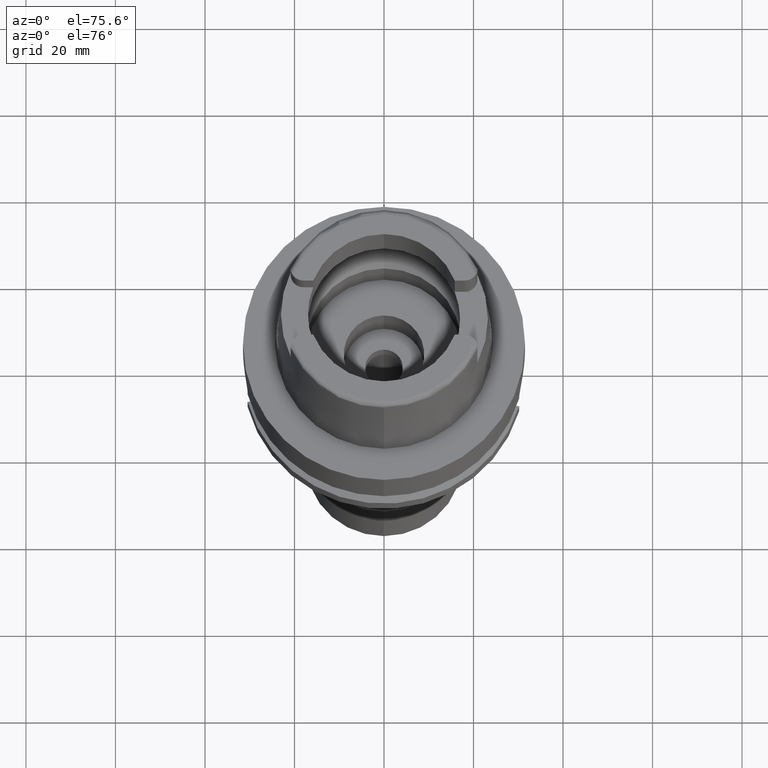
[diagram: clean part render]
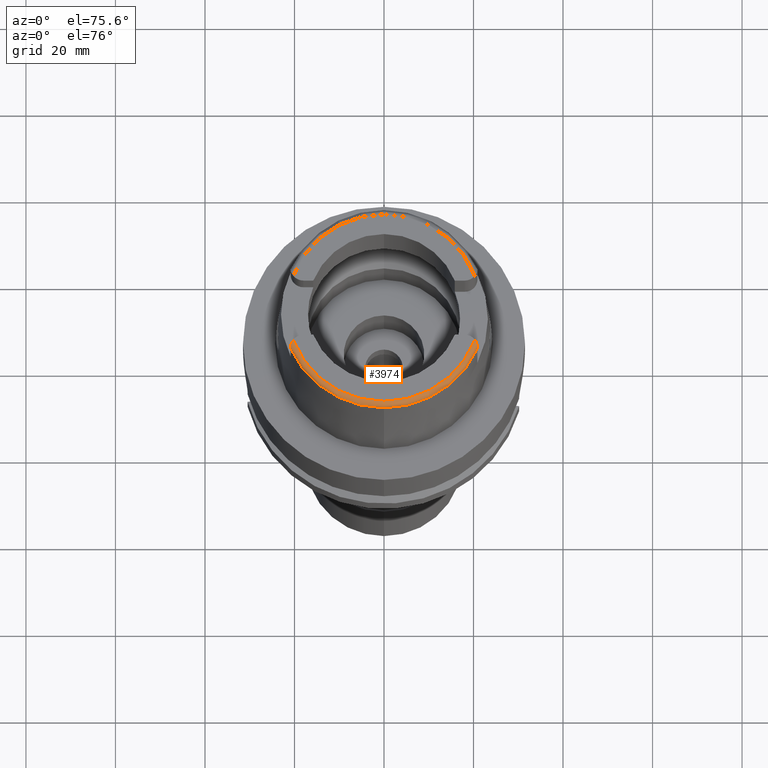
[diagram: same view with one face highlighted and labeled with its STEP entity id]
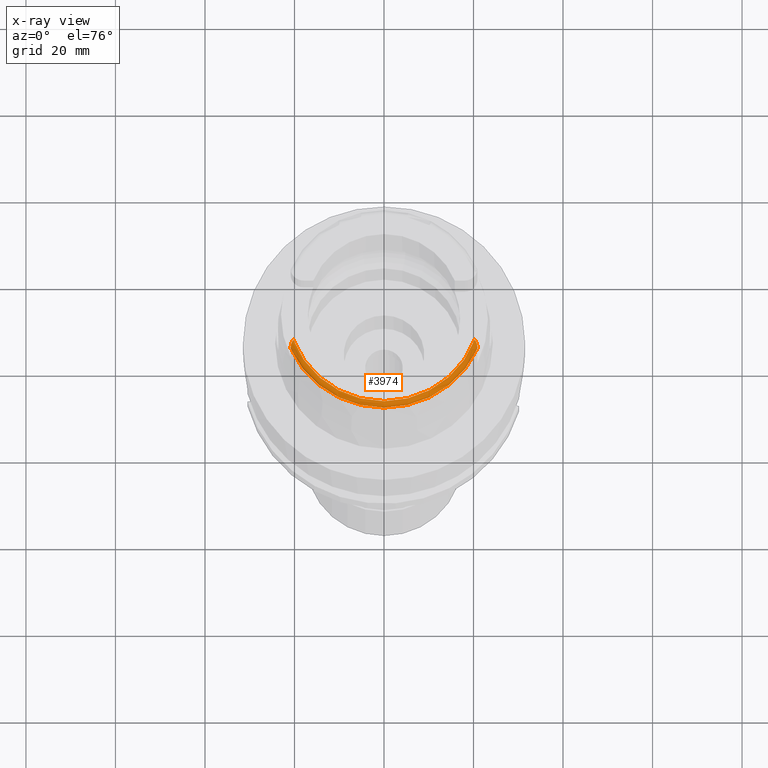
[diagram: x-ray of the same camera — body ghosted, the highlighted face saturated]
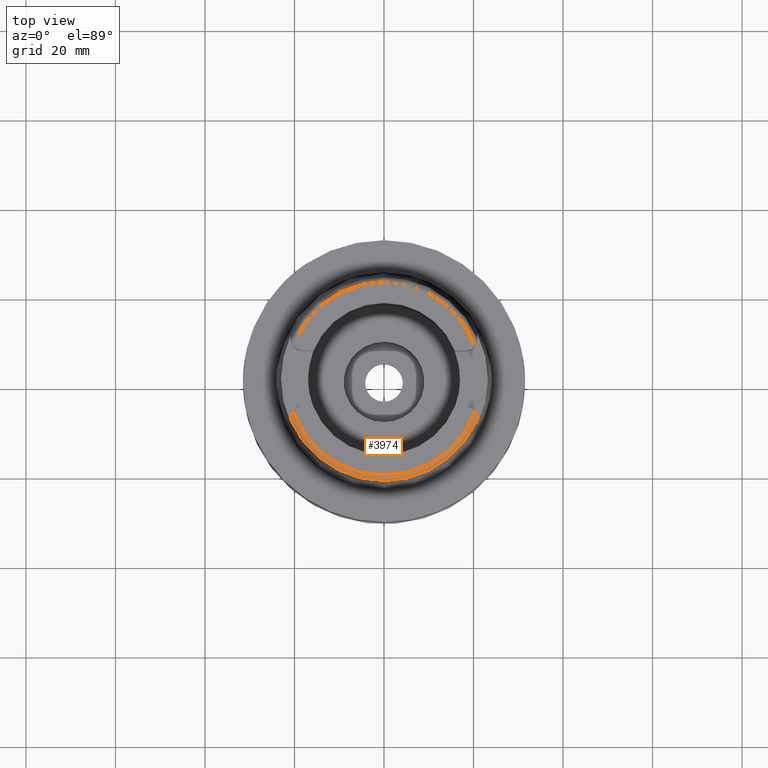
[diagram: same view with one face highlighted and labeled with its STEP entity id]
A machine part, auxiliary view. The second image highlights one B-rep face of the part: STEP entity #3974.
The next image is the same camera in x-ray: the body ghosted, the highlighted face saturated — about 0% of this face is hidden behind the body in this view.
A second angle (top view) of the same face is appended — the face is thin or edge-on in the first view.
In plain terms, the highlighted toroidal blend (fillet) surface has major radius 21.5735 mm and minor (blend) radius 1.2 mm.
Its self-contained STEP definition (entity closure, byte-faithful):
#29 = CARTESIAN_POINT ( 'NONE',  ( -20.71248996716753155, -8.207689846206323026, 31.77228684002133363 ) ) ;
#197 = CARTESIAN_POINT ( 'NONE',  ( 20.87000000000000099, -9.070000000000000284, 31.00584217417999966 ) ) ;
#249 = EDGE_CURVE ( 'NONE', #5436, #1597, #5113, .T. ) ;
#305 = CARTESIAN_POINT ( 'NONE',  ( 20.60845534592744954, -7.888286895013477462, 31.89408520756957444 ) ) ;
#332 = CARTESIAN_POINT ( 'NONE',  ( 20.79896683364334820, -8.443282967950011653, 31.62237664038152474 ) ) ;
#364 = CARTESIAN_POINT ( 'NONE',  ( 20.79501618593454992, -8.426162019685438764, 31.63308067177113969 ) ) ;
#368 = VERTEX_POINT ( 'NONE', #4759 ) ;
#389 = CARTESIAN_POINT ( 'NONE',  ( -20.67803593668521245, -8.115464911612090049, 31.81550811677279356 ) ) ;
#440 = CARTESIAN_POINT ( 'NONE',  ( -20.73814440234330547, -8.286800805050020813, 31.73056878117396806 ) ) ;
#469 = CARTESIAN_POINT ( 'NONE',  ( -20.41316226917745880, -7.575682510302611306, 32.00000000000000000 ) ) ;
#504 = AXIS2_PLACEMENT_3D ( 'NONE', #2883, #5382, #1945 ) ;
#586 = CARTESIAN_POINT ( 'NONE',  ( 20.87000000000000099, -9.070000000000000284, 31.00584217417999966 ) ) ;
#725 = CARTESIAN_POINT ( 'NONE',  ( 20.85738348944918386, -8.799512399905001558, 31.35760982423154530 ) ) ;
#757 = CARTESIAN_POINT ( 'NONE',  ( 20.57793604956050970, -7.824345773714566299, 31.91616956854441511 ) ) ;
#782 = CARTESIAN_POINT ( 'NONE',  ( 20.82063014000235768, -8.540935583675148379, 31.56013503704591727 ) ) ;
#808 = CARTESIAN_POINT ( 'NONE',  ( 20.76446022763101240, -8.305904312876950968, 31.70453202698061901 ) ) ;
#859 = CARTESIAN_POINT ( 'NONE',  ( -20.80934349955186136, -8.560511319458479207, 31.56195008459679485 ) ) ;
#886 = CARTESIAN_POINT ( 'NONE',  ( -20.86545981086780444, -8.986843022178069518, 31.16045485328212905 ) ) ;
#913 = CARTESIAN_POINT ( 'NONE',  ( 20.87000070298999788, -9.089797832204999040, 30.95640205472999895 ) ) ;
#944 = CARTESIAN_POINT ( 'NONE',  ( -20.86638709980072548, -9.004823211844925623, 31.13387739490336514 ) ) ;
#985 = CARTESIAN_POINT ( 'NONE',  ( 0.0000000000000000000, -22.77198729362000051, 30.85992712280000205 ) ) ;
#1040 = TOROIDAL_SURFACE ( 'NONE', #504, 21.57348458609000019, 1.199999999999999956 ) ;
#1137 = CARTESIAN_POINT ( 'NONE',  ( 20.74360684277586842, -8.236822523031491983, 31.74138781336573345 ) ) ;
#1241 = CARTESIAN_POINT ( 'NONE',  ( -20.86787763309170174, -9.038199388778224375, 31.07847186281157903 ) ) ;
#1270 = ORIENTED_EDGE ( 'NONE', *, *, #1302, .F. ) ;
#1293 = CARTESIAN_POINT ( 'NONE',  ( -20.65156325028784678, -8.049689708880535477, 31.84417458915799060 ) ) ;
#1302 = EDGE_CURVE ( 'NONE', #2542, #4794, #3550, .T. ) ;
#1324 = CARTESIAN_POINT ( 'NONE',  ( -20.78424247757186905, -8.452062542851029647, 31.63347315170482332 ) ) ;
#1349 = CARTESIAN_POINT ( 'NONE',  ( -20.86965324358618190, -9.104832187881362060, 30.91396429897820752 ) ) ;
#1462 = CARTESIAN_POINT ( 'NONE',  ( 0.0000000000000000000, 0.0000000000000000000, 30.85992712280000205 ) ) ;
#1477 = EDGE_CURVE ( 'NONE', #1597, #368, #4585, .T. ) ;
#1575 = CARTESIAN_POINT ( 'NONE',  ( 20.80306467133978998, -8.461411097079832189, 31.61092678333328365 ) ) ;
#1597 = VERTEX_POINT ( 'NONE', #197 ) ;
#1598 = DIRECTION ( 'NONE',  ( 0.9401236264118068009, -0.3408336354621024911, 0.0000000000000000000 ) ) ;
#1606 = EDGE_CURVE ( 'NONE', #368, #2542, #2226, .T. ) ;
#1654 = CARTESIAN_POINT ( 'NONE',  ( 20.34605210860357261, -7.435807623308134495, 31.99999999999999289 ) ) ;
#1713 = CARTESIAN_POINT ( 'NONE',  ( 20.87000527243999670, -9.110771420352000050, 30.85992623711999983 ) ) ;
#1778 = EDGE_CURVE ( 'NONE', #5436, #1837, #2406, .T. ) ;
#1837 = VERTEX_POINT ( 'NONE', #3364 ) ;
#1882 = DIRECTION ( 'NONE',  ( 0.9164775804687985694, -0.4000860463675992573, 0.0000000000000000000 ) ) ;
#1888 = AXIS2_PLACEMENT_3D ( 'NONE', #2925, #2017, #1598 ) ;
#1945 = DIRECTION ( 'NONE',  ( -0.0006539142454762719193, -0.9999997861980568503, 0.0000000000000000000 ) ) ;
#2017 = DIRECTION ( 'NONE',  ( 0.0000000000000000000, 0.0000000000000000000, -1.000000000000000000 ) ) ;
#2020 = CARTESIAN_POINT ( 'NONE',  ( 20.59634625021481469, -7.862616038788778461, 31.90309923245726509 ) ) ;
#2051 = FACE_OUTER_BOUND ( 'NONE', #3901, .T. ) ;
#2130 = CARTESIAN_POINT ( 'NONE',  ( -20.75744703499674770, -8.352613603620536509, 31.69320859313263483 ) ) ;
#2140 = ORIENTED_EDGE ( 'NONE', *, *, #249, .F. ) ;
#2182 = CARTESIAN_POINT ( 'NONE',  ( -20.84159816788250197, -8.745042735179671567, 31.41946248049295320 ) ) ;
#2226 = CIRCLE ( 'NONE', #2664, 22.77198729362001117 ) ;
#2388 = CARTESIAN_POINT ( 'NONE',  ( 20.83283702531801751, -8.610711723061875489, 31.51110418801149393 ) ) ;
#2406 = CIRCLE ( 'NONE', #1888, 21.57348458609000375 ) ;
#2415 = CARTESIAN_POINT ( 'NONE',  ( 20.66196188635086273, -8.006086298045953953, 31.85061680225315683 ) ) ;
#2441 = B_SPLINE_CURVE_WITH_KNOTS ( 'NONE', 3,
 ( #2537, #1349, #4683, #2983, #1241, #944, #886, #3369, #3398, #4202, #2182, #2932, #5098, #2957, #4260, #859, #4231, #1324, #3870, #4627, #3813, #2130, #440, #29, #389, #3008, #1293, #4289, #4707, #469, #3842 ),
 .UNSPECIFIED., .F., .F.,
 ( 4, 2, 2, 2, 2, 2, 2, 2, 2, 1, 2, 2, 1, 1, 2, 2, 4 ),
 ( 0.0000000000000000000, 0.1250000000000131561, 0.1875000000000205114, 0.2500000000000278666, 0.3750000000000378586, 0.4375000000000416334, 0.4687500000000408007, 0.5000000000000398570, 0.5625000000000358602, 0.5937500000000338618, 0.6093750000000333067, 0.6250000000000326406, 0.6875000000000289768, 0.7187500000000250910, 0.7343750000000224265, 0.7500000000000197620, 1.000000000000000000 ),
 .UNSPECIFIED. ) ;
#2443 = CARTESIAN_POINT ( 'NONE',  ( 20.53329889420431442, -7.736716513713304266, 31.94351211070377161 ) ) ;
#2455 = ORIENTED_EDGE ( 'NONE', *, *, #4165, .F. ) ;
#2537 = CARTESIAN_POINT ( 'NONE',  ( -20.86974104062000279, -9.111384045608000193, 30.85992599284000093 ) ) ;
#2542 = VERTEX_POINT ( 'NONE', #985 ) ;
#2664 = AXIS2_PLACEMENT_3D ( 'NONE', #1462, #4034, #1882 ) ;
#2851 = CARTESIAN_POINT ( 'NONE',  ( 20.28174256341000259, -7.352969181062000814, 32.00000000000000000 ) ) ;
#2883 = CARTESIAN_POINT ( 'NONE',  ( 0.0000000000000000000, 0.0000000000000000000, 30.80000000000000071 ) ) ;
#2925 = CARTESIAN_POINT ( 'NONE',  ( 0.0000000000000000000, 0.0000000000000000000, 32.00000000000000000 ) ) ;
#2932 = CARTESIAN_POINT ( 'NONE',  ( -20.83366527646483135, -8.693635650188831221, 31.46170817453712587 ) ) ;
#2957 = CARTESIAN_POINT ( 'NONE',  ( -20.82450368662726703, -8.639777641999161872, 31.50374426771215752 ) ) ;
#2983 = CARTESIAN_POINT ( 'NONE',  ( -20.86838045110483719, -9.052657736505565822, 31.05088303226181523 ) ) ;
#3008 = CARTESIAN_POINT ( 'NONE',  ( -20.66228470550343843, -8.075990630972611939, 31.83286370854401071 ) ) ;
#3263 = CARTESIAN_POINT ( 'NONE',  ( 20.87000000000000099, -9.070000000000000284, 31.00584217417999966 ) ) ;
#3293 = CARTESIAN_POINT ( 'NONE',  ( 20.49231550850244332, -7.664516218014876259, 31.96154016047917423 ) ) ;
#3320 = CARTESIAN_POINT ( 'NONE',  ( 20.78538610200887504, -8.386150909112311425, 31.65756005008245211 ) ) ;
#3364 = CARTESIAN_POINT ( 'NONE',  ( -20.26871835884000106, -7.388795116668999796, 32.00000000000000000 ) ) ;
#3369 = CARTESIAN_POINT ( 'NONE',  ( -20.86119163457713199, -8.920618460102311076, 31.24796449388633590 ) ) ;
#3398 = CARTESIAN_POINT ( 'NONE',  ( -20.85682550469284990, -8.868165879198647517, 31.30563353150784422 ) ) ;
#3550 = CIRCLE ( 'NONE', #4258, 22.77198729362000051 ) ;
#3643 = CARTESIAN_POINT ( 'NONE',  ( -20.86974104062000279, -9.111384045608000193, 30.85992599284000093 ) ) ;
#3688 = DIRECTION ( 'NONE',  ( 0.0000000000000000000, -1.000000000000000000, 0.0000000000000000000 ) ) ;
#3759 = CARTESIAN_POINT ( 'NONE',  ( 20.61510992275799836, -7.902706324611401101, 31.88887094133553646 ) ) ;
#3813 = CARTESIAN_POINT ( 'NONE',  ( -20.76021323312616218, -8.362308916601532971, 31.68760326267726413 ) ) ;
#3842 = CARTESIAN_POINT ( 'NONE',  ( -20.26871835884000106, -7.388795116668999796, 32.00000000000000000 ) ) ;
#3870 = CARTESIAN_POINT ( 'NONE',  ( -20.77580428132003476, -8.418808570381811407, 31.65420181635008490 ) ) ;
#3901 = EDGE_LOOP ( 'NONE', ( #1270, #5421, #5042, #2140, #4532, #2455 ) ) ;
#3974 = ADVANCED_FACE ( 'NONE', ( #2051 ), #1040, .T. ) ;
#4034 = DIRECTION ( 'NONE',  ( 0.0000000000000000000, 0.0000000000000000000, -1.000000000000000000 ) ) ;
#4146 = CARTESIAN_POINT ( 'NONE',  ( 20.87000000000000455, -9.027219014152839449, 31.10377527405805154 ) ) ;
#4165 = EDGE_CURVE ( 'NONE', #4794, #1837, #2441, .T. ) ;
#4172 = CARTESIAN_POINT ( 'NONE',  ( 20.69785722828416752, -8.098506603616494104, 31.81055817533717800 ) ) ;
#4199 = CARTESIAN_POINT ( 'NONE',  ( 20.80156158761706209, -8.454690719684885281, 31.61519331517596143 ) ) ;
#4202 = CARTESIAN_POINT ( 'NONE',  ( -20.84595065692217730, -8.777339857608721374, 31.39113100376816234 ) ) ;
#4231 = CARTESIAN_POINT ( 'NONE',  ( -20.80010998383389875, -8.517771600613151861, 31.59120664965079683 ) ) ;
#4258 = AXIS2_PLACEMENT_3D ( 'NONE', #4978, #5036, #3688 ) ;
#4260 = CARTESIAN_POINT ( 'NONE',  ( -20.82143253816646933, -8.622896167676415757, 31.51644689148880829 ) ) ;
#4286 = CARTESIAN_POINT ( 'NONE',  ( 20.87000527243999670, -9.108810473671999475, 30.87561672722999973 ) ) ;
#4289 = CARTESIAN_POINT ( 'NONE',  ( -20.64675608470946599, -8.038108788873906008, 31.84905854054339969 ) ) ;
#4346 = CARTESIAN_POINT ( 'NONE',  ( 20.86999753952999725, -9.103328629823000284, 30.90736836990000214 ) ) ;
#4516 = CARTESIAN_POINT ( 'NONE',  ( 20.40712995275296038, -7.524098347059694269, 31.99038504011978645 ) ) ;
#4532 = ORIENTED_EDGE ( 'NONE', *, *, #1778, .T. ) ;
#4585 = B_SPLINE_CURVE_WITH_KNOTS ( 'NONE', 3,
 ( #586, #4705, #913, #4346, #4286, #1713 ),
 .UNSPECIFIED., .F., .F.,
 ( 4, 1, 1, 4 ),
 ( 0.0000000000000000000, 0.3333333333333000081, 0.6666666666667000474, 1.000000000000000000 ),
 .UNSPECIFIED. ) ;
#4625 = CARTESIAN_POINT ( 'NONE',  ( 20.86950696495670599, -8.954061268787919303, 31.20395882405569310 ) ) ;
#4627 = CARTESIAN_POINT ( 'NONE',  ( -20.76656038246157365, -8.384982979014415250, 31.67432360142274916 ) ) ;
#4683 = CARTESIAN_POINT ( 'NONE',  ( -20.86946470424338074, -9.089327376228336419, 30.96845834710093825 ) ) ;
#4705 = CARTESIAN_POINT ( 'NONE',  ( 20.87000000000000099, -9.077225449224998854, 30.98930186716000179 ) ) ;
#4707 = CARTESIAN_POINT ( 'NONE',  ( -20.54057281629527765, -7.788292315526222254, 31.95169873297389884 ) ) ;
#4759 = CARTESIAN_POINT ( 'NONE',  ( 20.87000527243999670, -9.110771420352000050, 30.85992623711999983 ) ) ;
#4794 = VERTEX_POINT ( 'NONE', #3643 ) ;
#4977 = CARTESIAN_POINT ( 'NONE',  ( 20.85115372418017898, -8.739246145480327854, 31.41058878488522410 ) ) ;
#4978 = CARTESIAN_POINT ( 'NONE',  ( 0.0000000000000000000, 0.0000000000000000000, 30.85992712280000205 ) ) ;
#5036 = DIRECTION ( 'NONE',  ( 0.0000000000000000000, 0.0000000000000000000, -1.000000000000000000 ) ) ;
#5042 = ORIENTED_EDGE ( 'NONE', *, *, #1477, .F. ) ;
#5098 = CARTESIAN_POINT ( 'NONE',  ( -20.83078656696413944, -8.676006661372097639, 31.47574815237802426 ) ) ;
#5113 = B_SPLINE_CURVE_WITH_KNOTS ( 'NONE', 3,
 ( #2851, #1654, #4516, #3293, #2443, #757, #2020, #305, #3759, #2415, #4172, #1137, #808, #3320, #364, #332, #4199, #1575, #782, #2388, #4977, #725, #4625, #4146, #3263 ),
 .UNSPECIFIED., .F., .F.,
 ( 4, 2, 1, 1, 2, 2, 2, 1, 1, 1, 2, 2, 2, 2, 4 ),
 ( 0.0000000000000000000, 0.1250000000000766054, 0.1875000000001144917, 0.2187500000001331157, 0.2343750000001413869, 0.2500000000001496581, 0.3750000000002148837, 0.4375000000002478018, 0.4687500000002627898, 0.4843750000002678413, 0.4921875000002683964, 0.5000000000002688960, 0.6250000000002037259, 0.7500000000001385558, 1.000000000000000000 ),
 .UNSPECIFIED. ) ;
#5293 = CARTESIAN_POINT ( 'NONE',  ( 20.28174256341000259, -7.352969181062000814, 32.00000000000000000 ) ) ;
#5382 = DIRECTION ( 'NONE',  ( 0.0000000000000000000, 0.0000000000000000000, 1.000000000000000000 ) ) ;
#5421 = ORIENTED_EDGE ( 'NONE', *, *, #1606, .F. ) ;
#5436 = VERTEX_POINT ( 'NONE', #5293 ) ;